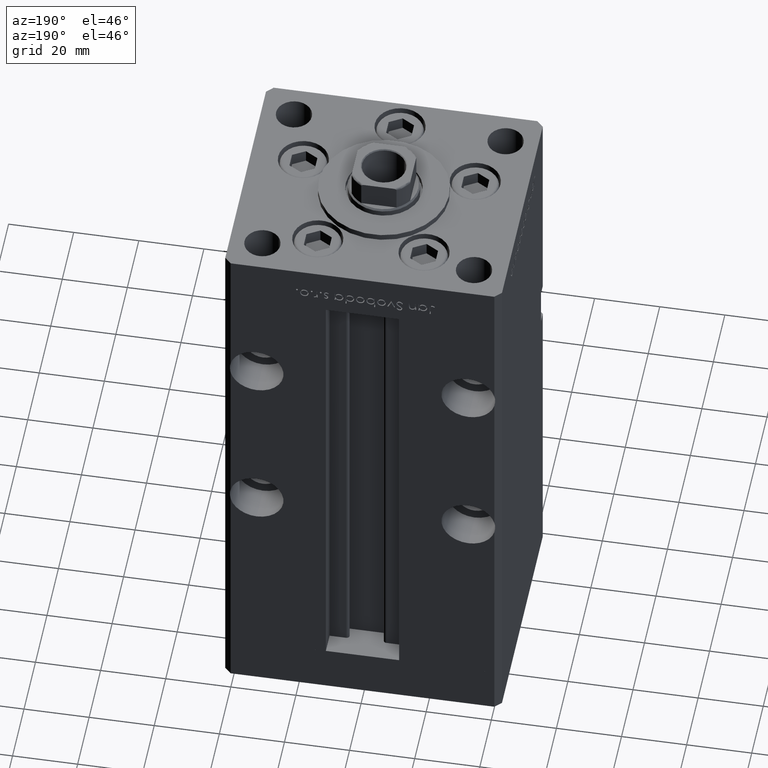
[diagram: clean part render]
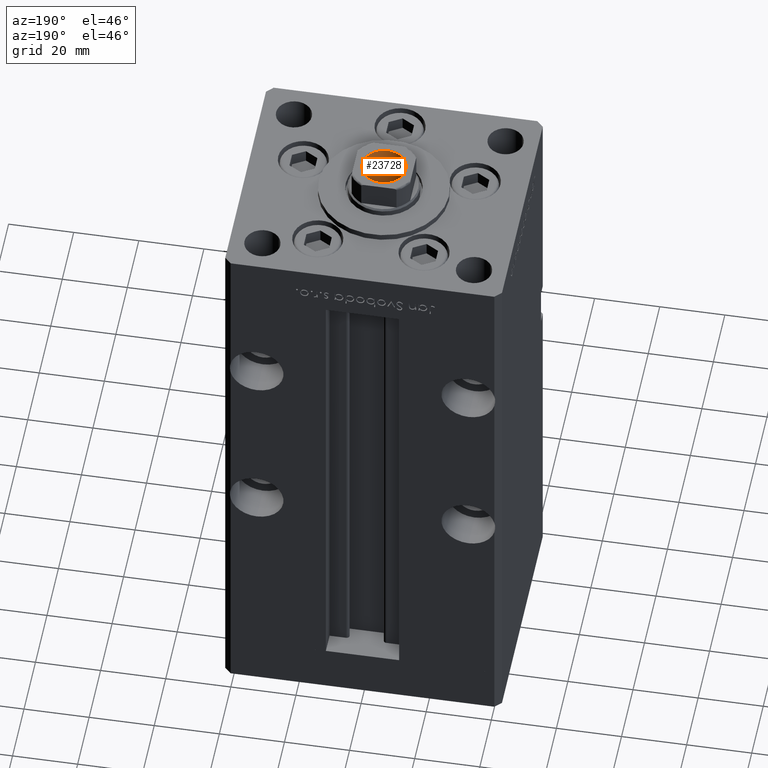
[diagram: same view with one face highlighted and labeled with its STEP entity id]
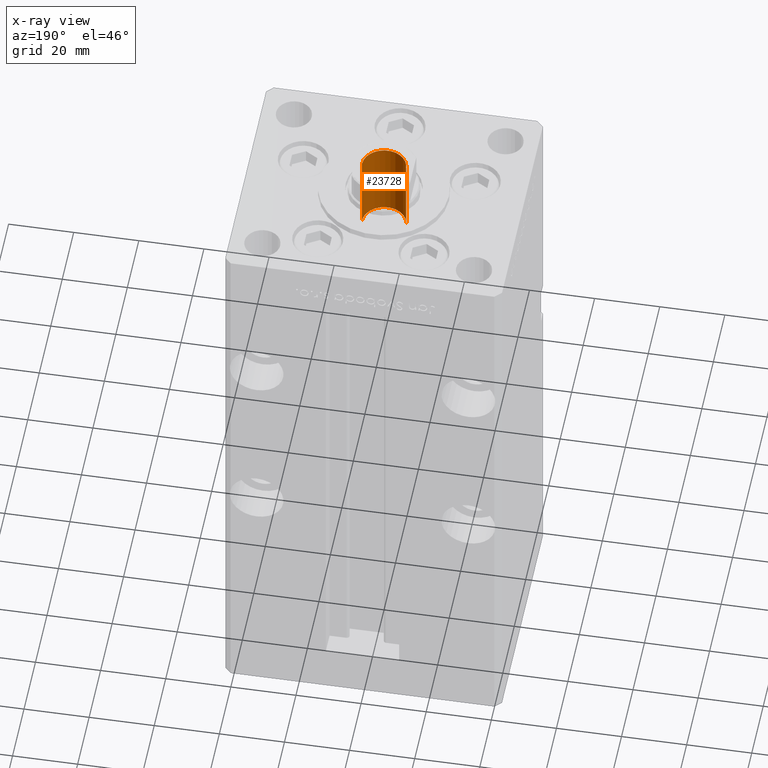
[diagram: x-ray of the same camera — body ghosted, the highlighted face saturated]
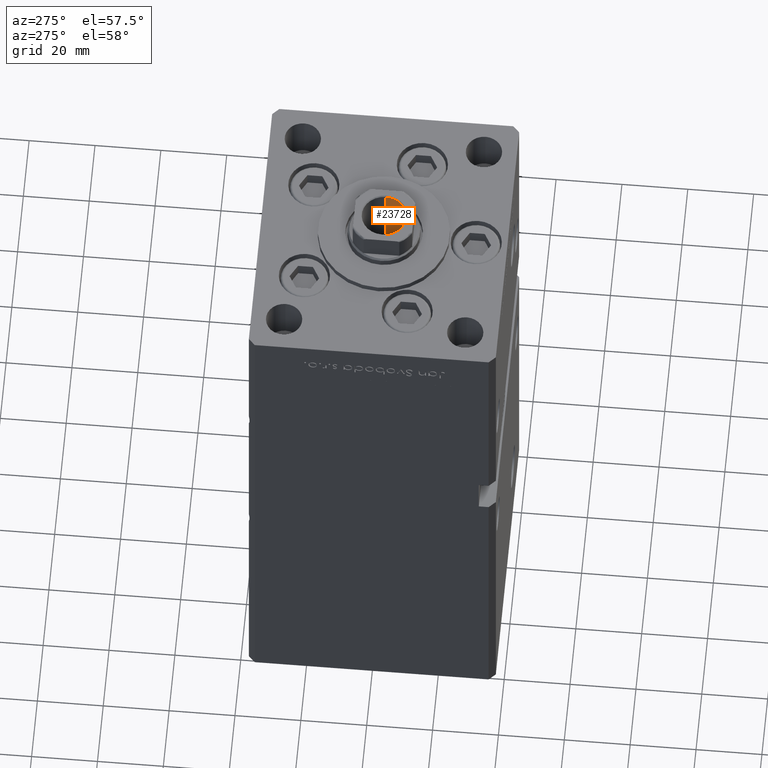
[diagram: same view with one face highlighted and labeled with its STEP entity id]
A machine part, auxiliary view. The second image highlights one B-rep face of the part: STEP entity #23728.
The next image is the same camera in x-ray: the body ghosted, the highlighted face saturated — about 0% of this face is hidden behind the body in this view.
A second angle (auxiliary view) of the same face is appended — the face is thin or edge-on in the first view.
In plain terms, the highlighted cylindrical surface (edge-blend (fillet) strip) has radius 6.75 mm, axis along (0, 0, 1).
Its self-contained STEP definition (entity closure, byte-faithful):
#344 = ORIENTED_EDGE ( 'NONE', *, *, #34293, .F. ) ;
#839 = EDGE_CURVE ( 'NONE', #34014, #37720, #12165, .T. ) ;
#1561 = CARTESIAN_POINT ( 'NONE',  ( 6.749999999999995559, 0.000000000000000000, 155.4499999999999886 ) ) ;
#2592 = FACE_OUTER_BOUND ( 'NONE', #6565, .T. ) ;
#5716 = ORIENTED_EDGE ( 'NONE', *, *, #839, .T. ) ;
#6565 = EDGE_LOOP ( 'NONE', ( #26028, #5716, #7360, #344 ) ) ;
#7360 = ORIENTED_EDGE ( 'NONE', *, *, #37024, .T. ) ;
#9025 = AXIS2_PLACEMENT_3D ( 'NONE', #31098, #19792, #11195 ) ;
#9699 = DIRECTION ( 'NONE',  ( 0.000000000000000000, 0.000000000000000000, 1.000000000000000000 ) ) ;
#10955 = AXIS2_PLACEMENT_3D ( 'NONE', #37810, #51220, #30251 ) ;
#11195 = DIRECTION ( 'NONE',  ( 1.000000000000000000, 0.000000000000000000, 0.000000000000000000 ) ) ;
#12165 = LINE ( 'NONE', #36653, #12879 ) ;
#12879 = VECTOR ( 'NONE', #23469, 1000.000000000000000 ) ;
#19792 = DIRECTION ( 'NONE',  ( -0.000000000000000000, -0.000000000000000000, 1.000000000000000000 ) ) ;
#22213 = CIRCLE ( 'NONE', #26503, 6.749999999999995559 ) ;
#23469 = DIRECTION ( 'NONE',  ( -0.000000000000000000, -0.000000000000000000, 1.000000000000000000 ) ) ;
#23728 = ADVANCED_FACE ( 'NONE', ( #2592 ), #35944, .F. ) ;
#23867 = VECTOR ( 'NONE', #40723, 1000.000000000000000 ) ;
#26028 = ORIENTED_EDGE ( 'NONE', *, *, #34061, .F. ) ;
#26365 = DIRECTION ( 'NONE',  ( 1.000000000000000000, 0.000000000000000000, 0.000000000000000000 ) ) ;
#26503 = AXIS2_PLACEMENT_3D ( 'NONE', #51646, #9699, #26365 ) ;
#30251 = DIRECTION ( 'NONE',  ( 1.000000000000000000, 0.000000000000000000, 0.000000000000000000 ) ) ;
#31098 = CARTESIAN_POINT ( 'NONE',  ( 0.000000000000000000, 0.000000000000000000, 155.7500000000000000 ) ) ;
#31575 = CIRCLE ( 'NONE', #10955, 6.749999999999993783 ) ;
#31854 = CARTESIAN_POINT ( 'NONE',  ( 6.749999999999993783, 0.000000000000000000, 130.7500000000000000 ) ) ;
#34014 = VERTEX_POINT ( 'NONE', #36493 ) ;
#34061 = EDGE_CURVE ( 'NONE', #34014, #51237, #31575, .T. ) ;
#34293 = EDGE_CURVE ( 'NONE', #51237, #37369, #52564, .T. ) ;
#35944 = CYLINDRICAL_SURFACE ( 'NONE', #9025, 6.749999999999995559 ) ;
#36493 = CARTESIAN_POINT ( 'NONE',  ( -6.749999999999993783, 8.266365894244626445E-16, 130.7500000000000000 ) ) ;
#36653 = CARTESIAN_POINT ( 'NONE',  ( -6.749999999999995559, 8.266365894244628417E-16, 155.7500000000000000 ) ) ;
#37024 = EDGE_CURVE ( 'NONE', #37720, #37369, #22213, .T. ) ;
#37369 = VERTEX_POINT ( 'NONE', #1561 ) ;
#37720 = VERTEX_POINT ( 'NONE', #38622 ) ;
#37810 = CARTESIAN_POINT ( 'NONE',  ( 0.000000000000000000, 0.000000000000000000, 130.7500000000000000 ) ) ;
#38622 = CARTESIAN_POINT ( 'NONE',  ( -6.749999999999995559, 8.266365894244628417E-16, 155.4499999999999886 ) ) ;
#40723 = DIRECTION ( 'NONE',  ( -0.000000000000000000, -0.000000000000000000, 1.000000000000000000 ) ) ;
#48522 = CARTESIAN_POINT ( 'NONE',  ( 6.749999999999995559, 0.000000000000000000, 155.7500000000000000 ) ) ;
#51220 = DIRECTION ( 'NONE',  ( -0.000000000000000000, -0.000000000000000000, 1.000000000000000000 ) ) ;
#51237 = VERTEX_POINT ( 'NONE', #31854 ) ;
#51646 = CARTESIAN_POINT ( 'NONE',  ( 0.000000000000000000, 0.000000000000000000, 155.4499999999999886 ) ) ;
#52564 = LINE ( 'NONE', #48522, #23867 ) ;